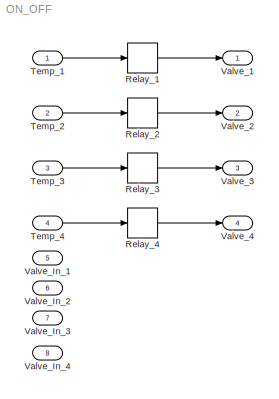
MODEL ON_OFF
KIND model
BLOCK [Relay] Relay_1
  OffOutputValue = 9
  OffSwitchValue = 20
  OnOutputValue = 90
  OnSwitchValue = 22
  SID = 1
BLOCK [Relay] Relay_2
  OffSwitchValue = 20
  OnOutputValue = 90
  OnSwitchValue = 22
  SID = 11
BLOCK [Relay] Relay_3
  OffSwitchValue = 20
  OnOutputValue = 90
  OnSwitchValue = 22
  SID = 14
BLOCK [Relay] Relay_4
  OffSwitchValue = 20
  OnOutputValue = 90
  OnSwitchValue = 22
  SID = 17
BLOCK [Inport] Temp_1
  IconDisplay = Port number
  SID = 5
BLOCK [Inport] Temp_2
  IconDisplay = Port number
  Port = 2
  SID = 10
BLOCK [Inport] Temp_3
  IconDisplay = Port number
  Port = 3
  SID = 13
BLOCK [Inport] Temp_4
  IconDisplay = Port number
  Port = 4
  SID = 16
BLOCK [Outport] Valve_1
  IconDisplay = Port number
  SID = 6
BLOCK [Outport] Valve_2
  IconDisplay = Port number
  Port = 2
  SID = 12
BLOCK [Outport] Valve_3
  IconDisplay = Port number
  Port = 3
  SID = 15
BLOCK [Outport] Valve_4
  IconDisplay = Port number
  Port = 4
  SID = 18
BLOCK [Inport] Valve_In_1
  IconDisplay = Port number
  Port = 5
  SID = 19
BLOCK [Inport] Valve_In_2
  IconDisplay = Port number
  Port = 6
  SID = 20
BLOCK [Inport] Valve_In_3
  IconDisplay = Port number
  Port = 7
  SID = 21
BLOCK [Inport] Valve_In_4
  IconDisplay = Port number
  Port = 8
  SID = 22
LINE Relay_1:1 -> Valve_1:1
LINE Relay_2:1 -> Valve_2:1
LINE Relay_3:1 -> Valve_3:1
LINE Relay_4:1 -> Valve_4:1
LINE Temp_1:1 -> Relay_1:1
LINE Temp_2:1 -> Relay_2:1
LINE Temp_3:1 -> Relay_3:1
LINE Temp_4:1 -> Relay_4:1
